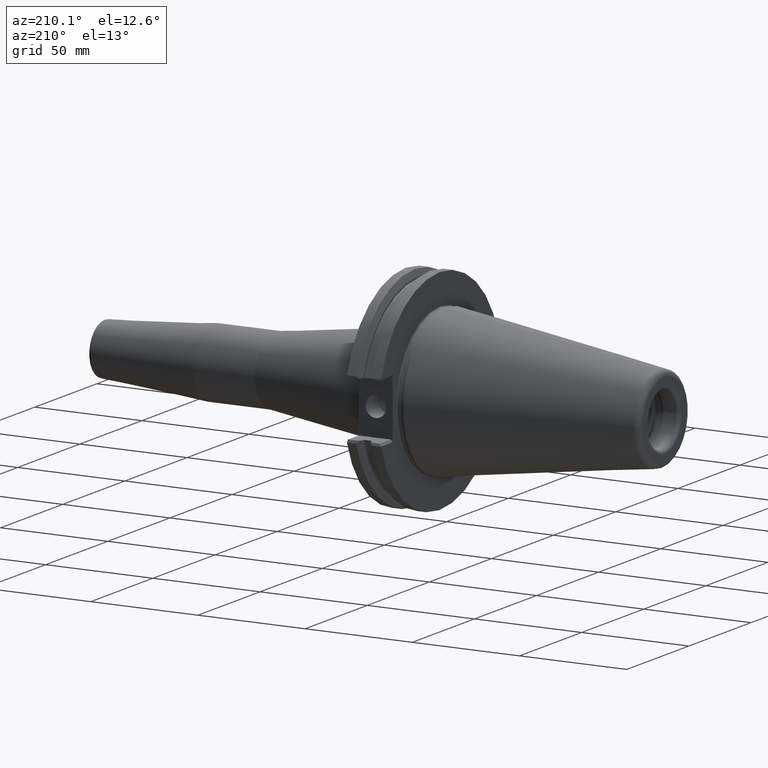
[diagram: clean part render]
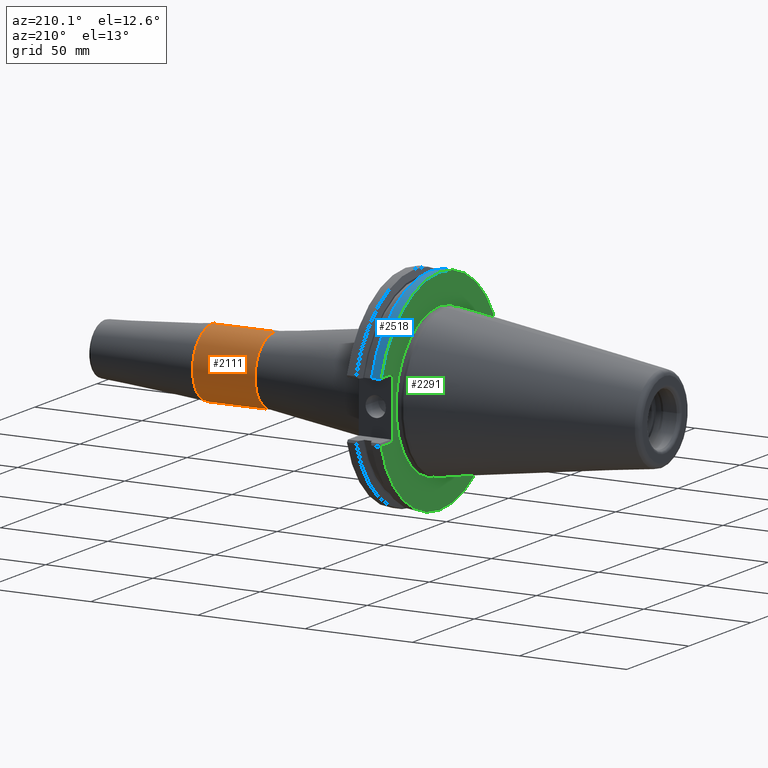
[diagram: same view with three faces highlighted in distinct colors, each labeled with its STEP entity id]
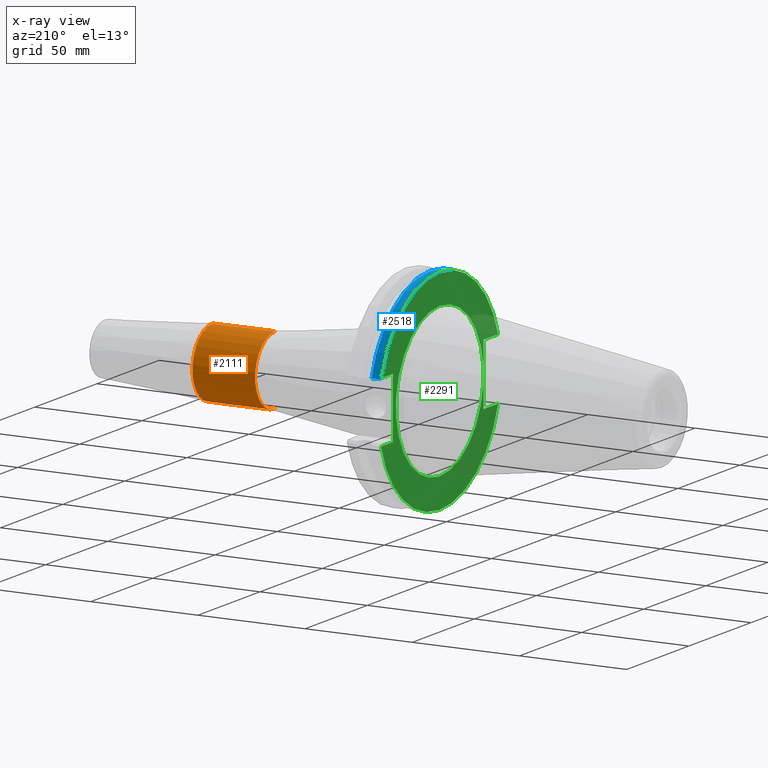
[diagram: x-ray of the same camera — body ghosted, the three highlighted faces saturated]
A machine part, auxiliary view with three faces highlighted in distinct colors.
The next image is the same camera in x-ray (body ghosted, the three faces saturated) — at least one of them is partly hidden behind the body in this view.
Their STEP definitions:

[orange] entity #2111 — the highlighted cylindrical surface (partial cylindrical patch) has radius 16 mm, axis along (1, 0, 0).
#489=CARTESIAN_POINT('',(1.091751810553E2,0.E0,0.E0));
#490=DIRECTION('',(1.E0,0.E0,0.E0));
#491=DIRECTION('',(0.E0,0.E0,-1.E0));
#492=AXIS2_PLACEMENT_3D('',#489,#490,#491);
#494=DIRECTION('',(-1.E0,0.E0,0.E0));
#495=VECTOR('',#494,2.917518105530E1);
#496=CARTESIAN_POINT('',(1.091751810553E2,0.E0,-1.6E1));
#497=LINE('',#496,#495);
#498=DIRECTION('',(-1.E0,0.E0,0.E0));
#499=VECTOR('',#498,2.917518105530E1);
#500=CARTESIAN_POINT('',(1.091751810553E2,0.E0,1.6E1));
#501=LINE('',#500,#499);
#520=CARTESIAN_POINT('',(8.E1,0.E0,0.E0));
#521=DIRECTION('',(1.E0,0.E0,0.E0));
#522=DIRECTION('',(0.E0,0.E0,-1.E0));
#523=AXIS2_PLACEMENT_3D('',#520,#521,#522);
#1317=CARTESIAN_POINT('',(1.091751810553E2,0.E0,-1.6E1));
#1318=VERTEX_POINT('',#1317);
#1319=CARTESIAN_POINT('',(8.E1,0.E0,-1.6E1));
#1320=VERTEX_POINT('',#1319);
#1347=CARTESIAN_POINT('',(1.091751810553E2,0.E0,1.6E1));
#1348=VERTEX_POINT('',#1347);
#1349=CARTESIAN_POINT('',(8.E1,0.E0,1.6E1));
#1350=VERTEX_POINT('',#1349);
#2097=CARTESIAN_POINT('',(1.20025E1,0.E0,0.E0));
#2098=DIRECTION('',(1.E0,0.E0,0.E0));
#2099=DIRECTION('',(0.E0,0.E0,1.E0));
#2100=AXIS2_PLACEMENT_3D('',#2097,#2098,#2099);
#2101=CYLINDRICAL_SURFACE('',#2100,1.6E1);
#2103=ORIENTED_EDGE('',*,*,#2102,.F.);
#2104=ORIENTED_EDGE('',*,*,#2092,.T.);
#2106=ORIENTED_EDGE('',*,*,#2105,.T.);
#2108=ORIENTED_EDGE('',*,*,#2107,.F.);
#2109=EDGE_LOOP('',(#2103,#2104,#2106,#2108));
#2110=FACE_OUTER_BOUND('',#2109,.F.);
#2111=ADVANCED_FACE('',(#2110),#2101,.T.);
#493=CIRCLE('',#492,1.6E1);
#524=CIRCLE('',#523,1.6E1);
#2092=EDGE_CURVE('',#1318,#1348,#493,.T.);
#2102=EDGE_CURVE('',#1318,#1320,#497,.T.);
#2105=EDGE_CURVE('',#1348,#1350,#501,.T.);
#2107=EDGE_CURVE('',#1320,#1350,#524,.T.);

[blue] entity #2518 — the highlighted cylindrical surface (partial cylindrical patch) has radius 49.2125 mm, axis along (1, 0, 0).
#769=CARTESIAN_POINT('',(7.613833230924E0,0.E0,0.E0));
#770=DIRECTION('',(-1.E0,0.E0,0.E0));
#771=DIRECTION('',(0.E0,-9.594285193142E-1,2.819519752130E-1));
#772=AXIS2_PLACEMENT_3D('',#769,#770,#771);
#804=CARTESIAN_POINT('',(3.624438419830E0,4.721587600675E1,1.387556158017E1));
#805=CARTESIAN_POINT('',(3.466168157346E0,4.716936434671E1,1.403383184265E1));
#806=CARTESIAN_POINT('',(3.308021838335E0,4.712202461158E1,1.419197816166E1));
#807=CARTESIAN_POINT('',(3.15E0,4.707385321227E1,1.435E1));
#809=DIRECTION('',(-1.E0,0.E0,0.E0));
#810=VECTOR('',#809,3.989394811095E0);
#811=CARTESIAN_POINT('',(7.613833230924E0,4.721587600675E1,1.387556158017E1));
#812=LINE('',#811,#810);
#813=DIRECTION('',(1.E0,0.E0,0.E0));
#814=VECTOR('',#813,3.989394811095E0);
#815=CARTESIAN_POINT('',(3.624438419830E0,-4.721587600675E1,1.387556158017E1));
#816=LINE('',#815,#814);
#817=CARTESIAN_POINT('',(3.15E0,-4.707385321227E1,1.435E1));
#818=CARTESIAN_POINT('',(3.308021838335E0,-4.712202461158E1,1.419197816166E1));
#819=CARTESIAN_POINT('',(3.466168157346E0,-4.716936434671E1,1.403383184265E1));
#820=CARTESIAN_POINT('',(3.624438419830E0,-4.721587600675E1,1.387556158017E1));
#822=CARTESIAN_POINT('',(3.15E0,0.E0,0.E0));
#823=DIRECTION('',(-1.E0,0.E0,0.E0));
#824=DIRECTION('',(0.E0,-9.565426103585E-1,2.915925831852E-1));
#825=AXIS2_PLACEMENT_3D('',#822,#823,#824);
#1199=CARTESIAN_POINT('',(3.624438419830E0,4.721587600675E1,1.387556158017E1));
#1200=VERTEX_POINT('',#1199);
#1201=CARTESIAN_POINT('',(3.15E0,4.707385321227E1,1.435E1));
#1203=VERTEX_POINT('',#1201);
#1215=CARTESIAN_POINT('',(3.624438419830E0,-4.721587600675E1,1.387556158017E1));
#1217=VERTEX_POINT('',#1215);
#1222=CARTESIAN_POINT('',(3.15E0,-4.707385321227E1,1.435E1));
#1224=VERTEX_POINT('',#1222);
#1233=CARTESIAN_POINT('',(7.613833230924E0,4.721587600675E1,1.387556158017E1));
#1234=VERTEX_POINT('',#1233);
#1235=CARTESIAN_POINT('',(7.613833230924E0,-4.721587600675E1,1.387556158017E1));
#1236=VERTEX_POINT('',#1235);
#2503=CARTESIAN_POINT('',(0.E0,0.E0,0.E0));
#2504=DIRECTION('',(1.E0,0.E0,0.E0));
#2505=DIRECTION('',(0.E0,0.E0,1.E0));
#2506=AXIS2_PLACEMENT_3D('',#2503,#2504,#2505);
#2507=CYLINDRICAL_SURFACE('',#2506,4.92125E1);
#2508=ORIENTED_EDGE('',*,*,#2402,.F.);
#2509=ORIENTED_EDGE('',*,*,#2418,.F.);
#2510=ORIENTED_EDGE('',*,*,#2455,.F.);
#2512=ORIENTED_EDGE('',*,*,#2511,.F.);
#2514=ORIENTED_EDGE('',*,*,#2513,.F.);
#2515=ORIENTED_EDGE('',*,*,#2271,.T.);
#2516=EDGE_LOOP('',(#2508,#2509,#2510,#2512,#2514,#2515));
#2517=FACE_OUTER_BOUND('',#2516,.F.);
#2518=ADVANCED_FACE('',(#2517),#2507,.T.);
#773=CIRCLE('',#772,4.92125E1);
#808=B_SPLINE_CURVE_WITH_KNOTS('',3,(#804,#805,#806,#807),.UNSPECIFIED.,.F.,.F.,
(4,4),(0.E0,1.E0),.UNSPECIFIED.);
#821=B_SPLINE_CURVE_WITH_KNOTS('',3,(#817,#818,#819,#820),.UNSPECIFIED.,.F.,.F.,
(4,4),(0.E0,1.E0),.UNSPECIFIED.);
#826=CIRCLE('',#825,4.92125E1);
#2271=EDGE_CURVE('',#1224,#1203,#826,.T.);
#2402=EDGE_CURVE('',#1200,#1203,#808,.T.);
#2418=EDGE_CURVE('',#1234,#1200,#812,.T.);
#2455=EDGE_CURVE('',#1236,#1234,#773,.T.);
#2511=EDGE_CURVE('',#1217,#1236,#816,.T.);
#2513=EDGE_CURVE('',#1224,#1217,#821,.T.);

[green] entity #2291 — the highlighted planar face has unit normal (1, 0, 0).
#596=CARTESIAN_POINT('',(3.15E0,0.E0,0.E0));
#597=DIRECTION('',(1.E0,0.E0,0.E0));
#598=DIRECTION('',(0.E0,0.E0,1.E0));
#599=AXIS2_PLACEMENT_3D('',#596,#597,#598);
#601=CARTESIAN_POINT('',(3.15E0,0.E0,0.E0));
#602=DIRECTION('',(1.E0,0.E0,0.E0));
#603=DIRECTION('',(0.E0,0.E0,-1.E0));
#604=AXIS2_PLACEMENT_3D('',#601,#602,#603);
#606=DIRECTION('',(0.E0,1.E0,0.E0));
#607=VECTOR('',#606,9.477745407877E0);
#608=CARTESIAN_POINT('',(3.15E0,3.7719E1,-1.385E1));
#609=LINE('',#608,#607);
#610=DIRECTION('',(0.E0,-1.E0,0.E0));
#611=VECTOR('',#610,9.354853212266E0);
#612=CARTESIAN_POINT('',(3.15E0,4.707385321227E1,1.435E1));
#613=LINE('',#612,#611);
#614=DIRECTION('',(0.E0,-1.E0,0.E0));
#615=VECTOR('',#614,1.176785321227E1);
#616=CARTESIAN_POINT('',(3.15E0,-3.5306E1,1.435E1));
#617=LINE('',#616,#615);
#618=DIRECTION('',(0.E0,1.E0,0.E0));
#619=VECTOR('',#618,1.176785321227E1);
#620=CARTESIAN_POINT('',(3.15E0,-4.707385321227E1,-1.435E1));
#621=LINE('',#620,#619);
#622=DIRECTION('',(1.390924008965E-14,5.991861250008E-1,-8.006097598747E-1));
#623=VECTOR('',#622,3.192763997083E-2);
#624=CARTESIAN_POINT('',(3.15E0,4.719674540788E1,-1.385E1));
#625=LINE('',#624,#623);
#668=DIRECTION('',(0.E0,0.E0,-1.E0));
#669=VECTOR('',#668,2.82E1);
#670=CARTESIAN_POINT('',(3.15E0,3.7719E1,1.435E1));
#671=LINE('',#670,#669);
#822=CARTESIAN_POINT('',(3.15E0,0.E0,0.E0));
#823=DIRECTION('',(-1.E0,0.E0,0.E0));
#824=DIRECTION('',(0.E0,-9.565426103585E-1,2.915925831852E-1));
#825=AXIS2_PLACEMENT_3D('',#822,#823,#824);
#840=CARTESIAN_POINT('',(3.15E0,0.E0,0.E0));
#841=DIRECTION('',(-1.E0,0.E0,0.E0));
#842=DIRECTION('',(0.E0,9.594285193142E-1,-2.819519752130E-1));
#843=AXIS2_PLACEMENT_3D('',#840,#841,#842);
#949=DIRECTION('',(0.E0,0.E0,1.E0));
#950=VECTOR('',#949,2.87E1);
#951=CARTESIAN_POINT('',(3.15E0,-3.5306E1,-1.435E1));
#952=LINE('',#951,#950);
#1087=CARTESIAN_POINT('',(3.15E0,4.721587600675E1,-1.387556158017E1));
#1089=VERTEX_POINT('',#1087);
#1159=CARTESIAN_POINT('',(3.15E0,0.E0,3.5225E1));
#1160=CARTESIAN_POINT('',(3.15E0,0.E0,-3.5225E1));
#1161=VERTEX_POINT('',#1159);
#1162=VERTEX_POINT('',#1160);
#1187=CARTESIAN_POINT('',(3.15E0,3.7719E1,-1.385E1));
#1188=CARTESIAN_POINT('',(3.15E0,4.719674540788E1,-1.385E1));
#1189=VERTEX_POINT('',#1187);
#1190=VERTEX_POINT('',#1188);
#1201=CARTESIAN_POINT('',(3.15E0,4.707385321227E1,1.435E1));
#1202=CARTESIAN_POINT('',(3.15E0,3.7719E1,1.435E1));
#1203=VERTEX_POINT('',#1201);
#1204=VERTEX_POINT('',#1202);
#1211=CARTESIAN_POINT('',(3.15E0,-4.707385321227E1,-1.435E1));
#1212=CARTESIAN_POINT('',(3.15E0,-3.5306E1,-1.435E1));
#1213=VERTEX_POINT('',#1211);
#1214=VERTEX_POINT('',#1212);
#1221=CARTESIAN_POINT('',(3.15E0,-3.5306E1,1.435E1));
#1222=CARTESIAN_POINT('',(3.15E0,-4.707385321227E1,1.435E1));
#1223=VERTEX_POINT('',#1221);
#1224=VERTEX_POINT('',#1222);
#2261=CARTESIAN_POINT('',(3.15E0,0.E0,0.E0));
#2262=DIRECTION('',(1.E0,0.E0,0.E0));
#2263=DIRECTION('',(0.E0,0.E0,1.E0));
#2264=AXIS2_PLACEMENT_3D('',#2261,#2262,#2263);
#2265=PLANE('',#2264);
#2266=ORIENTED_EDGE('',*,*,#2251,.F.);
#2268=ORIENTED_EDGE('',*,*,#2267,.F.);
#2270=ORIENTED_EDGE('',*,*,#2269,.F.);
#2272=ORIENTED_EDGE('',*,*,#2271,.F.);
#2274=ORIENTED_EDGE('',*,*,#2273,.F.);
#2276=ORIENTED_EDGE('',*,*,#2275,.F.);
#2278=ORIENTED_EDGE('',*,*,#2277,.F.);
#2280=ORIENTED_EDGE('',*,*,#2279,.F.);
#2282=ORIENTED_EDGE('',*,*,#2281,.F.);
#2283=EDGE_LOOP('',(#2266,#2268,#2270,#2272,#2274,#2276,#2278,#2280,#2282));
#2284=FACE_OUTER_BOUND('',#2283,.F.);
#2286=ORIENTED_EDGE('',*,*,#2285,.F.);
#2288=ORIENTED_EDGE('',*,*,#2287,.F.);
#2289=EDGE_LOOP('',(#2286,#2288));
#2290=FACE_BOUND('',#2289,.F.);
#2291=ADVANCED_FACE('',(#2284,#2290),#2265,.F.);
#600=CIRCLE('',#599,3.5225E1);
#605=CIRCLE('',#604,3.5225E1);
#826=CIRCLE('',#825,4.92125E1);
#844=CIRCLE('',#843,4.92125E1);
#2251=EDGE_CURVE('',#1189,#1190,#609,.T.);
#2267=EDGE_CURVE('',#1204,#1189,#671,.T.);
#2269=EDGE_CURVE('',#1203,#1204,#613,.T.);
#2271=EDGE_CURVE('',#1224,#1203,#826,.T.);
#2273=EDGE_CURVE('',#1223,#1224,#617,.T.);
#2275=EDGE_CURVE('',#1214,#1223,#952,.T.);
#2277=EDGE_CURVE('',#1213,#1214,#621,.T.);
#2279=EDGE_CURVE('',#1089,#1213,#844,.T.);
#2281=EDGE_CURVE('',#1190,#1089,#625,.T.);
#2285=EDGE_CURVE('',#1161,#1162,#600,.T.);
#2287=EDGE_CURVE('',#1162,#1161,#605,.T.);